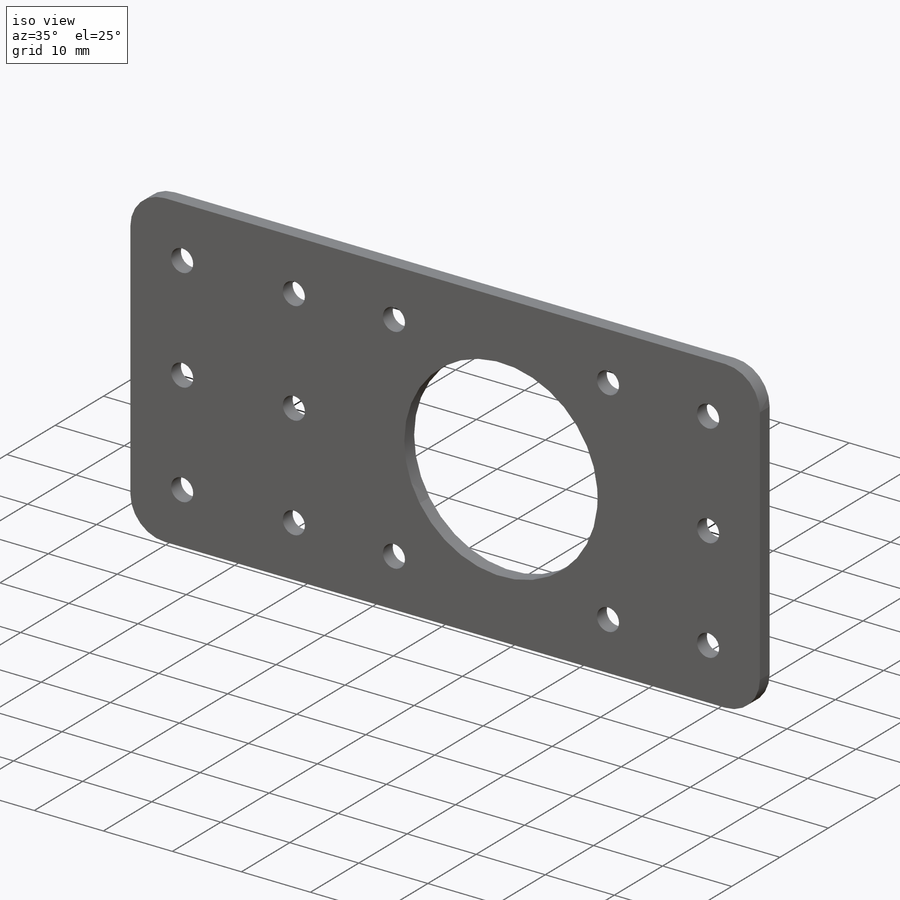
[diagram: iso view]
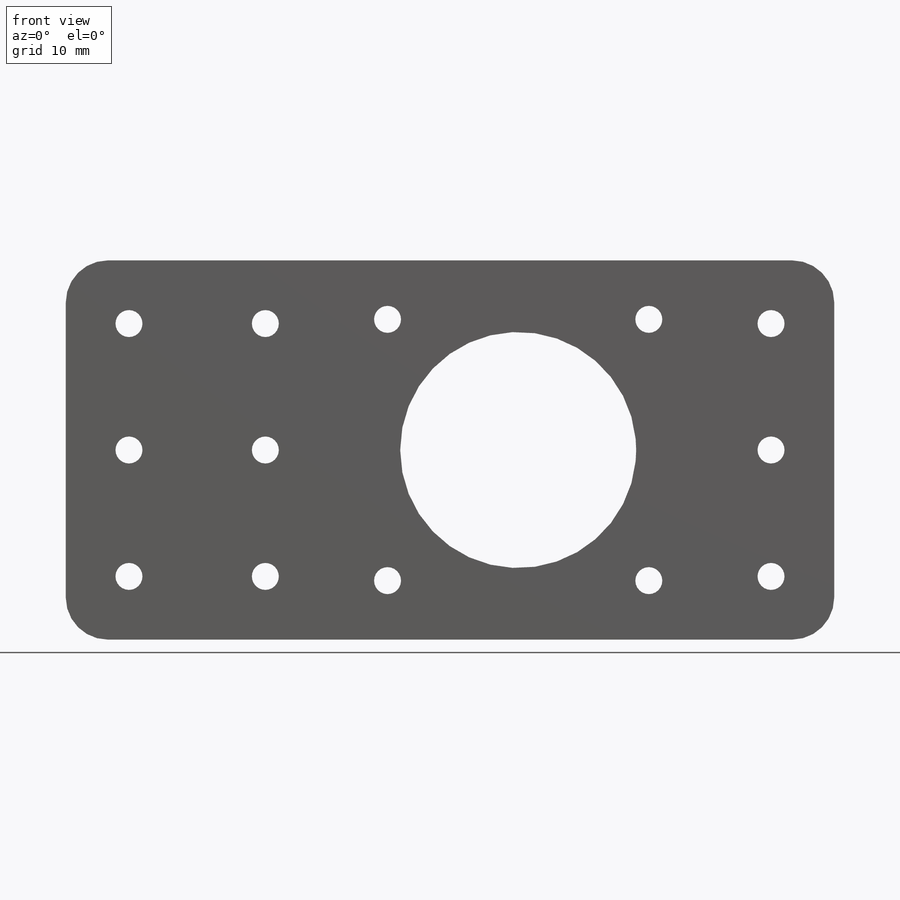
[diagram: front view]
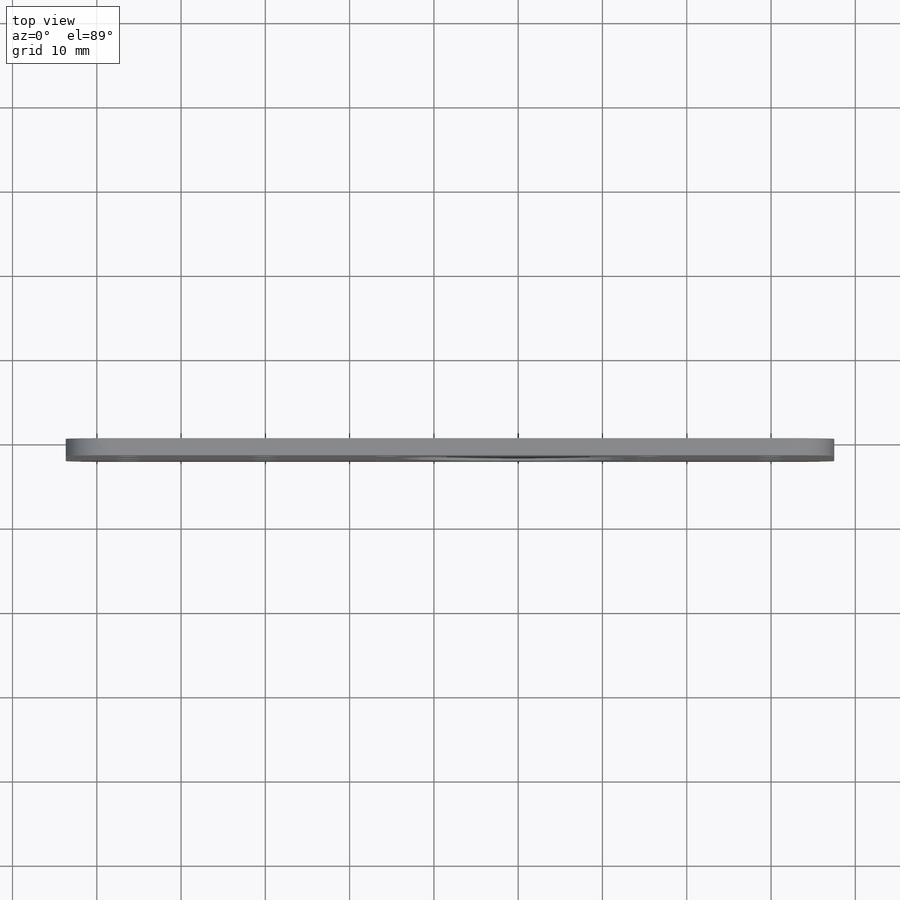
[diagram: top view]
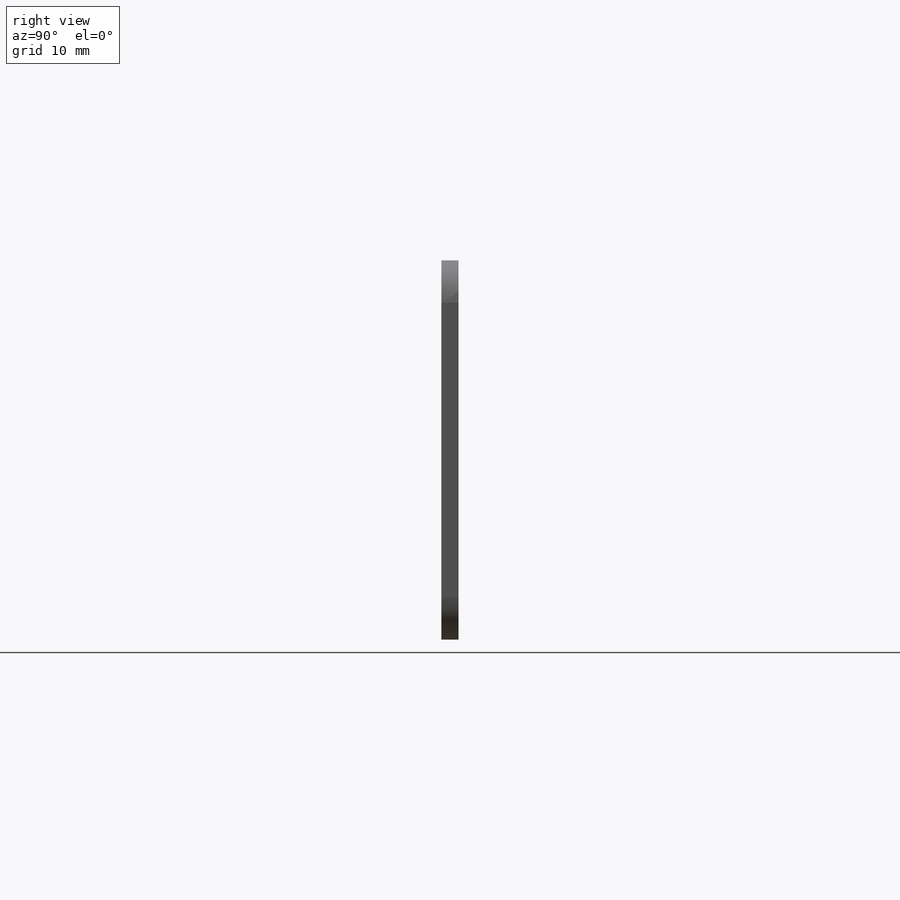
[diagram: right view]
SOLIDWORKS PART (.sldprt)
format: sldprt  version: not decoded by parser v0  size: 352,256 bytes
history: native  units: mm
features: sketch x7, extrude x3, cut_extrude x3, fillet x2, material x1 (+13 scaffold rows collapsed)
feature tree (29):
  scaffold x13  (default folders/planes/origin — collapsed)
  material  "Material <not specified>"
  sketch  "Sketch1"  dims[D2=28.0mm D3=3.2mm D1=31.0mm D4=45.0mm D5=75.0mm D6=15.0mm D7=15.0mm]
  extrude  "Boss-Extrude1"  Depth=2.032mm
  fillet  "Fillet2"  Radius=5mm
  sketch  "Sketch2"  dims[D1=3.2mm D2=7.5mm D3=15.0mm]
  cut_extrude  "Cut-Extrude1"  [1 undecoded]
  sketch  "Alignment Sketch 1"
  sketch  "Sketch4"  dims[D1=16.18mm D2=~30.900524mm]
  extrude  "Boss-Extrude2"  [1 undecoded]
  sketch  "Mounting Hole Sketch"  dims[D1=3.15mm D2=3.15mm D3=7.5mm]
  cut_extrude  "Mounting Hole Cut"  [1 undecoded]
  sketch  "Sketch5"  dims[D1=16.18mm]
  extrude  "Boss-Extrude3"  [1 undecoded]
  fillet  "Fillet3"  Radius=5mm
  sketch  "Sketch6"  dims[c1.D1=3.2mm c1.D2=3.2mm c1.D3=3.2mm c1.D4=3.2mm c1.D5=3.2mm c1.D6=3.2mm c1.D7=3.2mm c1.D8=3.2mm c2.D2=7.5mm c2.D3=7.5mm c2.D4=7.5mm c2.D5=7.5mm c2.D6=7.5mm c2.D7=15.0mm c2.D8=15.0mm]
  cut_extrude  "Cut-Extrude2"  [1 undecoded]
decode coverage: 9 of 15 modeling features carry decoded parameters
note: ~ marks probable driven/reference dimensions
note: 5 parameter values undecoded
summary: no parameter record found for 5 features
note: suppression state not decoded; provenance and decode notes live in map.json
